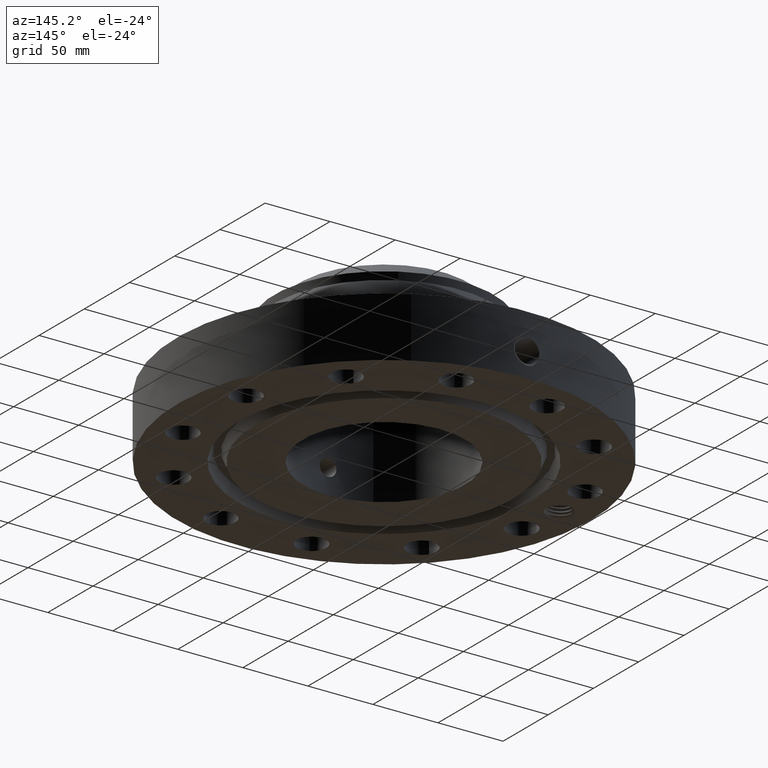
[diagram: clean part render]
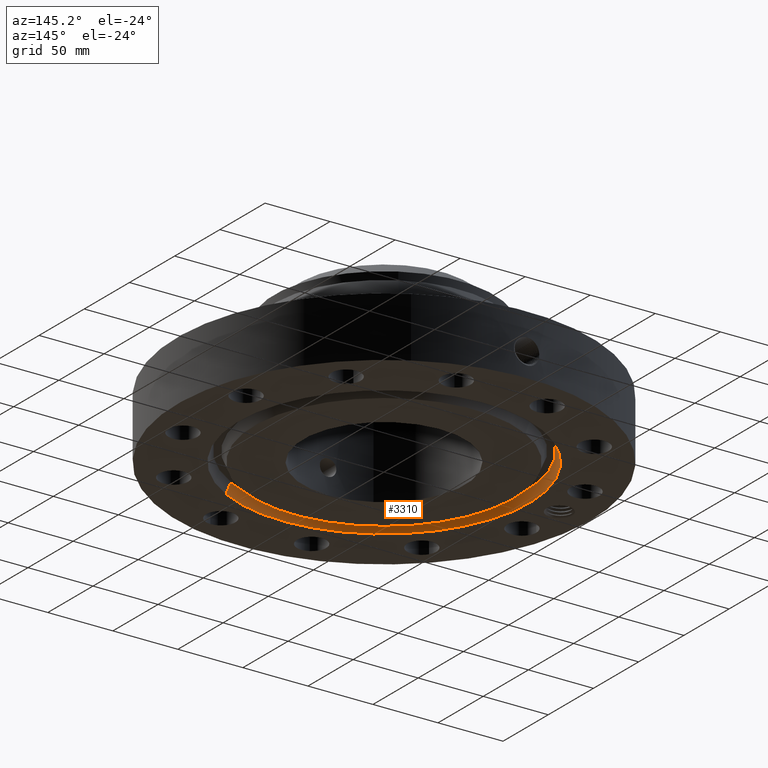
[diagram: same view with one face highlighted and labeled with its STEP entity id]
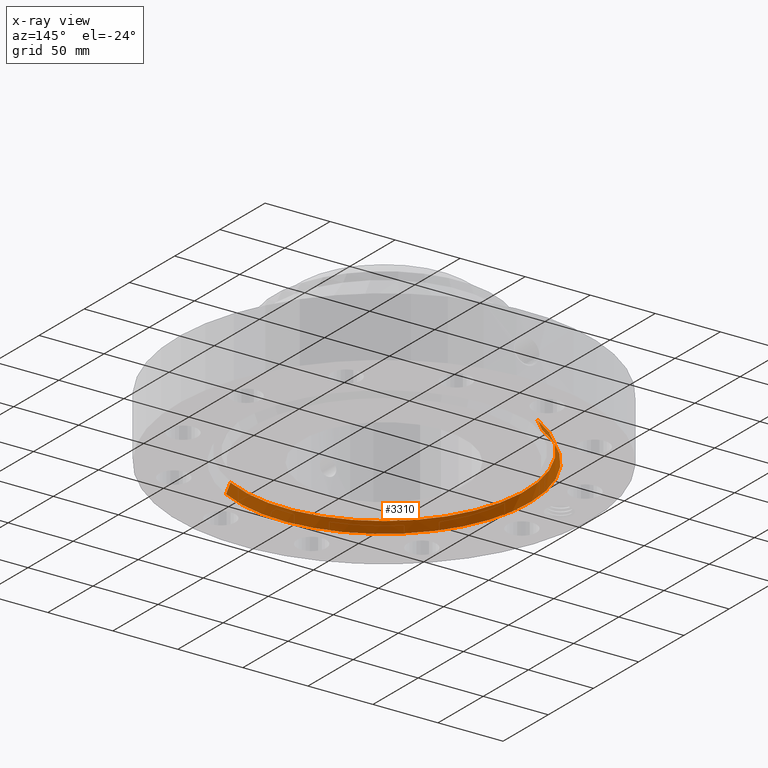
[diagram: x-ray of the same camera — body ghosted, the highlighted face saturated]
A machine part, auxiliary view. The second image highlights one B-rep face of the part: STEP entity #3310.
The next image is the same camera in x-ray: the body ghosted, the highlighted face saturated — about 0% of this face is hidden behind the body in this view.
In plain terms, the highlighted conical surface has half-angle 23 deg.
Its self-contained STEP definition (entity closure, byte-faithful):
#2635=AXIS2_PLACEMENT_3D('Circle Axis2P3D',#2633,#2634,$) ;
#3271=AXIS2_PLACEMENT_3D('Cone Axis2P3D',#3268,#3269,#3270) ;
#3301=AXIS2_PLACEMENT_3D('Circle Axis2P3D',#3299,#3300,$) ;
#2611=CARTESIAN_POINT('Vertex',(2.04530441643,-3.74390462143,0.294112664984)) ;
#2613=CARTESIAN_POINT('Vertex',(-2.04530441643,3.74390462143,0.294112664984)) ;
#2633=CARTESIAN_POINT('Axis2P3D Location',(0.,0.,0.294112664984)) ;
#3268=CARTESIAN_POINT('Axis2P3D Location',(0.,0.,0.294112664984)) ;
#3277=CARTESIAN_POINT('Vertex',(-2.10515754002,3.85346502928,-2.09805925913E-016)) ;
#3279=CARTESIAN_POINT('Vertex',(2.10515754002,-3.85346502928,1.04902962957E-016)) ;
#3282=CARTESIAN_POINT('Line Origine',(2.07523097822,-3.79868482535,0.147056332492)) ;
#3287=CARTESIAN_POINT('Line Origine',(-2.07523097822,3.79868482535,0.147056332492)) ;
#3299=CARTESIAN_POINT('Axis2P3D Location',(0.,0.,-3.49676543189E-017)) ;
#2634=DIRECTION('Axis2P3D Direction',(0.,0.,0.0393700787402)) ;
#3269=DIRECTION('Axis2P3D Direction',(-0.,-0.,-0.0393700787402)) ;
#3270=DIRECTION('Axis2P3D XDirection',(0.0188750212049,-0.0345504945626,0.)) ;
#3283=DIRECTION('Vector Direction',(0.00737505833565,-0.0134999537303,-0.0362403485611)) ;
#3288=DIRECTION('Vector Direction',(-0.00737505833565,0.0134999537303,-0.0362403485611)) ;
#3300=DIRECTION('Axis2P3D Direction',(0.,0.,-0.0393700787402)) ;
#3284=VECTOR('Line Direction',#3283,0.0393700787402) ;
#3289=VECTOR('Line Direction',#3288,0.0393700787402) ;
#3305=ORIENTED_EDGE('',*,*,#3303,.T.) ;
#3306=ORIENTED_EDGE('',*,*,#3291,.T.) ;
#3307=ORIENTED_EDGE('',*,*,#2637,.T.) ;
#3308=ORIENTED_EDGE('',*,*,#3286,.F.) ;
#3310=ADVANCED_FACE('PartBody',(#3309),#3272,.F.) ;
#2636=CIRCLE('generated circle',#2635,4.2661565806) ;
#3302=CIRCLE('generated circle',#3301,4.39100000002) ;
#3272=CONICAL_SURFACE('Cone',#3271,4.2661565806,0.401425727959) ;
#2637=EDGE_CURVE('',#2614,#2612,#2636,.T.) ;
#3286=EDGE_CURVE('',#3280,#2612,#3285,.F.) ;
#3291=EDGE_CURVE('',#3278,#2614,#3290,.F.) ;
#3303=EDGE_CURVE('',#3280,#3278,#3302,.T.) ;
#3304=EDGE_LOOP('',(#3305,#3306,#3307,#3308)) ;
#3309=FACE_OUTER_BOUND('',#3304,.T.) ;
#3285=LINE('Line',#3282,#3284) ;
#3290=LINE('Line',#3287,#3289) ;
#2612=VERTEX_POINT('',#2611) ;
#2614=VERTEX_POINT('',#2613) ;
#3278=VERTEX_POINT('',#3277) ;
#3280=VERTEX_POINT('',#3279) ;